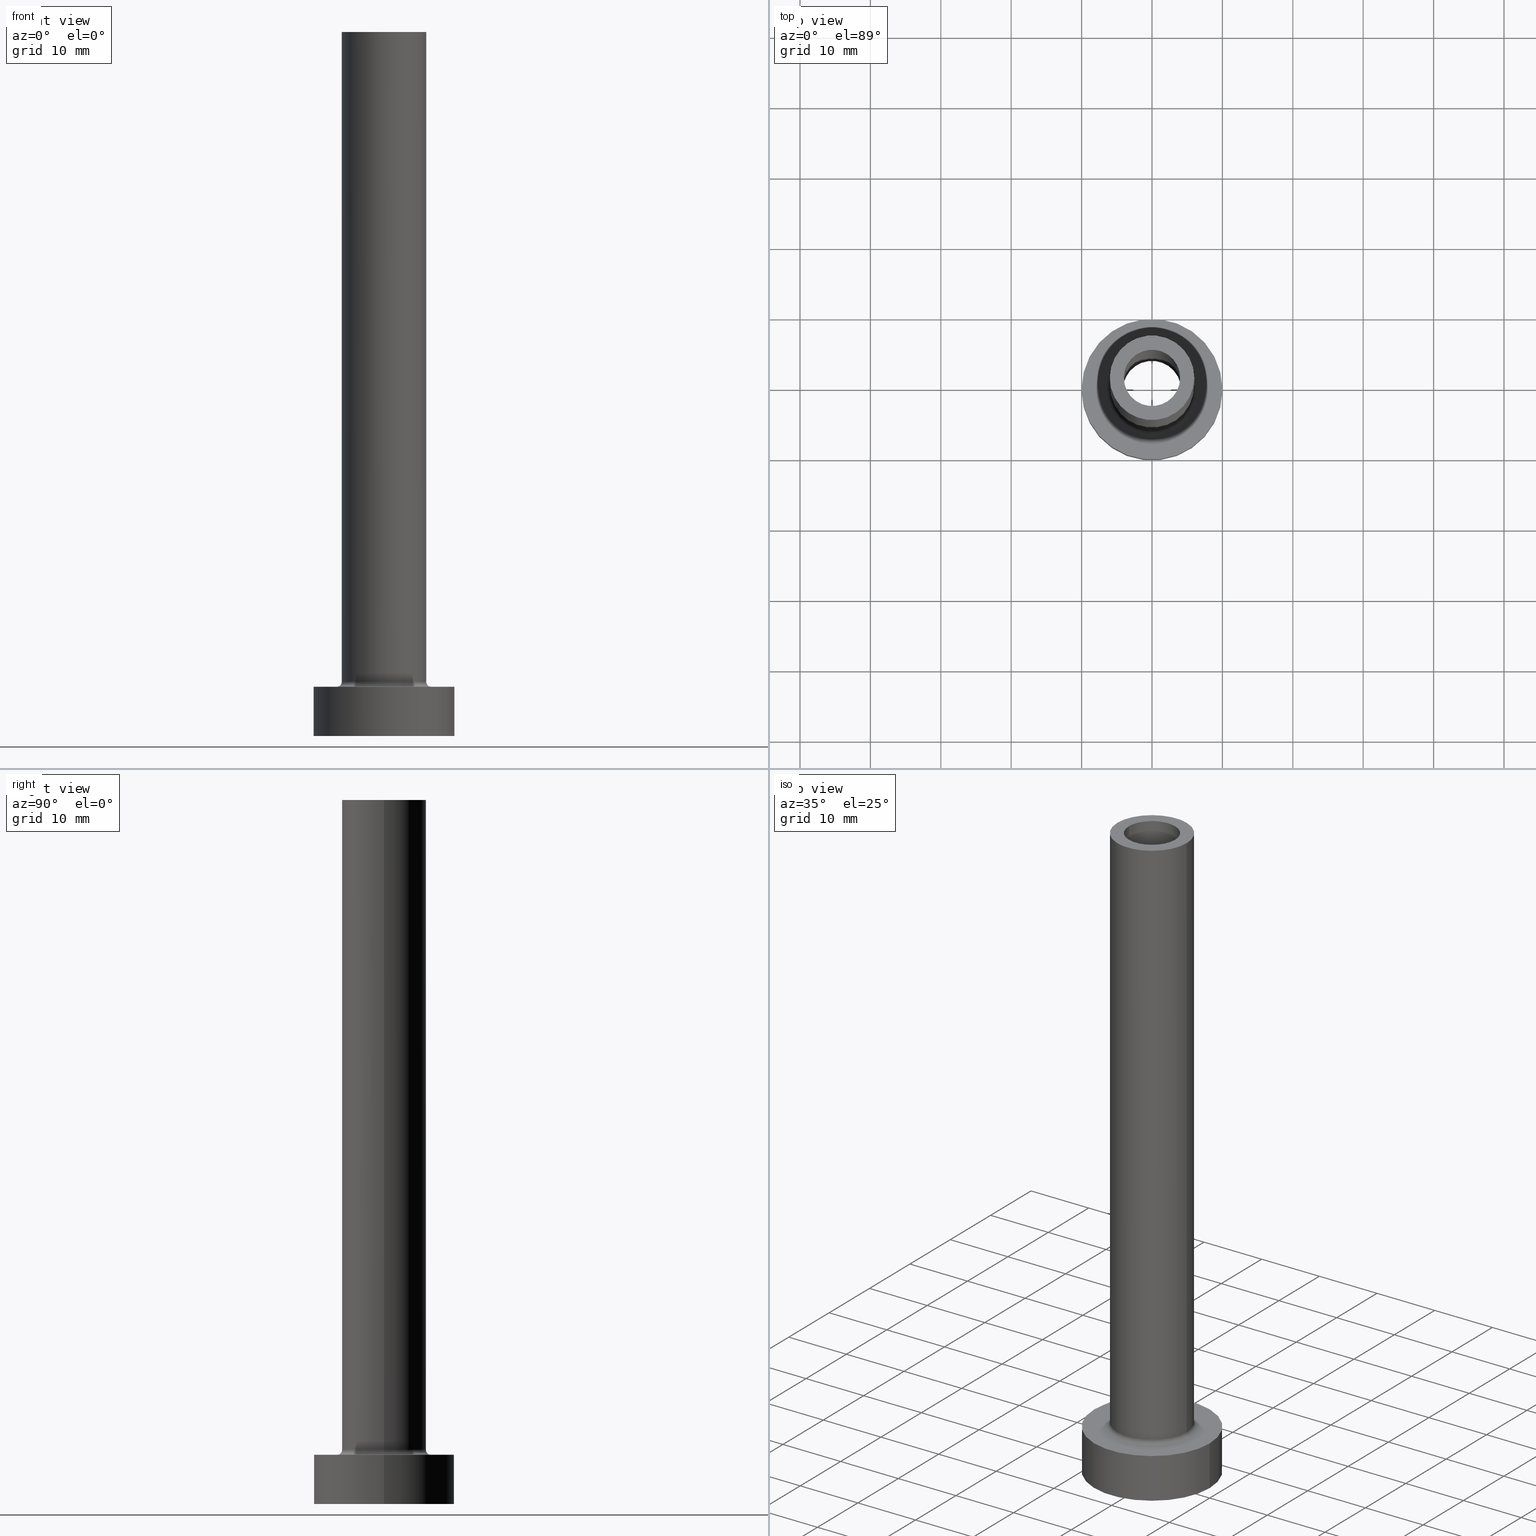
[diagram: canonical four-view strip — front | top / right | iso, engineering-drawing reading convention]
A machine part, canonical four-view strip (front | top / right | iso — engineering-drawing reading convention). The complete STEP part file that produces these views, byte-faithful:
ISO-10303-21;
HEADER;
FILE_DESCRIPTION (( 'STEP AP203' ),
    '1' );
FILE_NAME ('b167.STEP',
    '2023-02-13T12:47:15',
    ( '' ),
    ( '' ),
    'SwSTEP 2.0',
    'SolidWorks 2019',
    '' );
FILE_SCHEMA (( 'CONFIG_CONTROL_DESIGN' ));
ENDSEC;

DATA;
#1 = APPLICATION_PROTOCOL_DEFINITION ( 'international standard', 'config_control_design', 1994, #18 ) ;
#2 = EDGE_LOOP ( 'NONE', ( #177, #180, #408, #334 ) ) ;
#3 = CARTESIAN_POINT ( 'NONE',  ( 0.000000000000000000, 0.000000000000000000, 0.000000000000000000 ) ) ;
#4 = EDGE_CURVE ( 'NONE', #293, #386, #16, .T. ) ;
#5 = DESIGN_CONTEXT ( 'detailed design', #111, 'design' ) ;
#6 = PERSON_AND_ORGANIZATION ( #369, #299 ) ;
#7 = CARTESIAN_POINT ( 'NONE',  ( 4.150000000000000355, 5.082284216461515156E-16, 0.000000000000000000 ) ) ;
#8 = CALENDAR_DATE ( 2023, 13, 2 ) ;
#9 = DIRECTION ( 'NONE',  ( 0.000000000000000000, 0.000000000000000000, 1.000000000000000000 ) ) ;
#10 = EDGE_CURVE ( 'NONE', #386, #161, #127, .T. ) ;
#11 = DIRECTION ( 'NONE',  ( 0.000000000000000000, 0.000000000000000000, -1.000000000000000000 ) ) ;
#12 = ORIENTED_EDGE ( 'NONE', *, *, #92, .T. ) ;
#13 = VERTEX_POINT ( 'NONE', #385 ) ;
#14 = DIRECTION ( 'NONE',  ( 0.000000000000000000, 0.000000000000000000, 1.000000000000000000 ) ) ;
#15 = EDGE_CURVE ( 'NONE', #298, #230, #331, .T. ) ;
#16 = CIRCLE ( 'NONE', #460, 4.150000000000000355 ) ;
#17 = PLANE ( 'NONE',  #358 ) ;
#18 = APPLICATION_CONTEXT ( 'configuration controlled 3d designs of mechanical parts and assemblies' ) ;
#19 = ORIENTED_EDGE ( 'NONE', *, *, #4, .F. ) ;
#20 = EDGE_LOOP ( 'NONE', ( #75, #12, #62, #272 ) ) ;
#21 = VECTOR ( 'NONE', #216, 1000.000000000000000 ) ;
#22 = CARTESIAN_POINT ( 'NONE',  ( 0.000000000000000000, 0.000000000000000000, 100.0000000000000000 ) ) ;
#23 = AXIS2_PLACEMENT_3D ( 'NONE', #442, #122, #377 ) ;
#24 = ADVANCED_FACE ( 'NONE', ( #37 ), #420, .F. ) ;
#25 = DIRECTION ( 'NONE',  ( 0.000000000000000000, 0.000000000000000000, 1.000000000000000000 ) ) ;
#26 = AXIS2_PLACEMENT_3D ( 'NONE', #3, #391, #259 ) ;
#27 = ORIENTED_EDGE ( 'NONE', *, *, #175, .F. ) ;
#28 = DIRECTION ( 'NONE',  ( 1.000000000000000000, 0.000000000000000000, 0.000000000000000000 ) ) ;
#29 = ORIENTED_EDGE ( 'NONE', *, *, #10, .F. ) ;
#30 = CARTESIAN_POINT ( 'NONE',  ( 0.000000000000000000, 0.000000000000000000, 7.000000000000000000 ) ) ;
#31 = CARTESIAN_POINT ( 'NONE',  ( 0.000000000000000000, 0.000000000000000000, 0.000000000000000000 ) ) ;
#32 = DIRECTION ( 'NONE',  ( 1.000000000000000000, 0.000000000000000000, -0.000000000000000000 ) ) ;
#33 = EDGE_LOOP ( 'NONE', ( #29, #86, #211, #397 ) ) ;
#34 = LINE ( 'NONE', #407, #246 ) ;
#35 = AXIS2_PLACEMENT_3D ( 'NONE', #244, #378, #65 ) ;
#36 = AXIS2_PLACEMENT_3D ( 'NONE', #30, #305, #450 ) ;
#37 = FACE_OUTER_BOUND ( 'NONE', #33, .T. ) ;
#38 = DIRECTION ( 'NONE',  ( -1.000000000000000000, 0.000000000000000000, 0.000000000000000000 ) ) ;
#39 = EDGE_LOOP ( 'NONE', ( #329, #120, #206, #417 ) ) ;
#40 = ORIENTED_EDGE ( 'NONE', *, *, #129, .T. ) ;
#41 = ADVANCED_BREP_SHAPE_REPRESENTATION ( 'b167', ( #179, #26 ), #347 ) ;
#42 = EDGE_CURVE ( 'NONE', #311, #298, #171, .T. ) ;
#43 = EDGE_LOOP ( 'NONE', ( #392, #27 ) ) ;
#44 = AXIS2_PLACEMENT_3D ( 'NONE', #101, #107, #38 ) ;
#45 = MECHANICAL_CONTEXT ( 'NONE', #18, 'mechanical' ) ;
#46 = CARTESIAN_POINT ( 'NONE',  ( 4.150000000000000355, 5.082284216461515156E-16, 66.73797256769670128 ) ) ;
#47 = PRODUCT_DEFINITION ( 'NEZN�M�', '', #346, #5 ) ;
#48 = DATE_TIME_ROLE ( 'creation_date' ) ;
#49 = CIRCLE ( 'NONE', #357, 4.150000000000000355 ) ;
#50 = CIRCLE ( 'NONE', #294, 10.00000000000000000 ) ;
#51 = PERSON_AND_ORGANIZATION ( #369, #299 ) ;
#52 = CARTESIAN_POINT ( 'NONE',  ( 0.000000000000000000, 0.000000000000000000, 100.0000000000000000 ) ) ;
#53 = CARTESIAN_POINT ( 'NONE',  ( -4.150000000000000355, 0.000000000000000000, 66.73797256769670128 ) ) ;
#54 = EDGE_CURVE ( 'NONE', #149, #304, #279, .T. ) ;
#55 = ORIENTED_EDGE ( 'NONE', *, *, #278, .T. ) ;
#56 = LOCAL_TIME ( 13, 47, 15.00000000000000000, #147 ) ;
#57 = SHAPE_DEFINITION_REPRESENTATION ( #156, #41 ) ;
#58 = VECTOR ( 'NONE', #371, 1000.000000000000000 ) ;
#59 = PLANE ( 'NONE',  #124 ) ;
#60 = CARTESIAN_POINT ( 'NONE',  ( 0.000000000000000000, 0.000000000000000000, 100.0000000000000000 ) ) ;
#61 = CARTESIAN_POINT ( 'NONE',  ( 0.000000000000000000, 0.000000000000000000, 100.0000000000000000 ) ) ;
#62 = ORIENTED_EDGE ( 'NONE', *, *, #175, .T. ) ;
#63 = APPROVAL_ROLE ( '' ) ;
#64 = DIRECTION ( 'NONE',  ( 1.000000000000000000, 0.000000000000000000, 0.000000000000000000 ) ) ;
#65 = DIRECTION ( 'NONE',  ( 1.000000000000000000, 0.000000000000000000, -0.000000000000000000 ) ) ;
#66 = CARTESIAN_POINT ( 'NONE',  ( 0.000000000000000000, 0.000000000000000000, 0.000000000000000000 ) ) ;
#67 = PERSON_AND_ORGANIZATION ( #369, #299 ) ;
#68 = ORIENTED_EDGE ( 'NONE', *, *, #172, .F. ) ;
#69 = APPROVAL ( #184, 'NEUR�EN�' ) ;
#70 = AXIS2_PLACEMENT_3D ( 'NONE', #106, #143, #387 ) ;
#71 = CC_DESIGN_APPROVAL ( #69, ( #210 ) ) ;
#72 = AXIS2_PLACEMENT_3D ( 'NONE', #77, #141, #432 ) ;
#73 = DIRECTION ( 'NONE',  ( 1.000000000000000000, 0.000000000000000000, 0.000000000000000000 ) ) ;
#74 = LOCAL_TIME ( 13, 47, 15.00000000000000000, #108 ) ;
#75 = ORIENTED_EDGE ( 'NONE', *, *, #384, .F. ) ;
#76 = DIRECTION ( 'NONE',  ( -1.000000000000000000, 0.000000000000000000, 0.000000000000000000 ) ) ;
#77 = CARTESIAN_POINT ( 'NONE',  ( 0.000000000000000000, 0.000000000000000000, 100.0000000000000000 ) ) ;
#78 = EDGE_LOOP ( 'NONE', ( #437, #174, #189, #459 ) ) ;
#79 = AXIS2_PLACEMENT_3D ( 'NONE', #429, #146, #199 ) ;
#80 = DIRECTION ( 'NONE',  ( -0.000000000000000000, -0.000000000000000000, -1.000000000000000000 ) ) ;
#81 = CARTESIAN_POINT ( 'NONE',  ( 0.000000000000000000, 0.000000000000000000, 7.000000000000000000 ) ) ;
#82 = CARTESIAN_POINT ( 'NONE',  ( 0.000000000000000000, 0.000000000000000000, 100.0000000000000000 ) ) ;
#83 = DIRECTION ( 'NONE',  ( 1.000000000000000000, 0.000000000000000000, 0.000000000000000000 ) ) ;
#84 = EDGE_CURVE ( 'NONE', #304, #288, #34, .T. ) ;
#85 = ORIENTED_EDGE ( 'NONE', *, *, #4, .T. ) ;
#86 = ORIENTED_EDGE ( 'NONE', *, *, #444, .T. ) ;
#87 = CALENDAR_DATE ( 2023, 13, 2 ) ;
#88 = VECTOR ( 'NONE', #398, 1000.000000000000000 ) ;
#89 = DIRECTION ( 'NONE',  ( 1.000000000000000000, 0.000000000000000000, 0.000000000000000000 ) ) ;
#90 = AXIS2_PLACEMENT_3D ( 'NONE', #446, #14, #89 ) ;
#91 = CARTESIAN_POINT ( 'NONE',  ( -6.700000000000001066, 8.205133554287267548E-16, 6.999999999999999112 ) ) ;
#92 = EDGE_CURVE ( 'NONE', #309, #160, #238, .T. ) ;
#93 = CARTESIAN_POINT ( 'NONE',  ( 0.000000000000000000, 0.000000000000000000, 100.0000000000000000 ) ) ;
#94 = CIRCLE ( 'NONE', #70, 10.00000000000000000 ) ;
#95 = FACE_OUTER_BOUND ( 'NONE', #292, .T. ) ;
#96 = FACE_OUTER_BOUND ( 'NONE', #243, .T. ) ;
#97 = DIRECTION ( 'NONE',  ( -0.000000000000000000, -0.000000000000000000, -1.000000000000000000 ) ) ;
#98 = EDGE_CURVE ( 'NONE', #191, #160, #50, .T. ) ;
#99 = CARTESIAN_POINT ( 'NONE',  ( -10.00000000000000000, 0.000000000000000000, 7.000000000000000000 ) ) ;
#100 = CARTESIAN_POINT ( 'NONE',  ( 0.000000000000000000, 0.000000000000000000, 66.73797256769670128 ) ) ;
#101 = CARTESIAN_POINT ( 'NONE',  ( 0.000000000000000000, 0.000000000000000000, 66.73797256769670128 ) ) ;
#102 = AXIS2_PLACEMENT_3D ( 'NONE', #197, #303, #64 ) ;
#103 = EDGE_CURVE ( 'NONE', #449, #191, #130, .T. ) ;
#104 = CIRCLE ( 'NONE', #410, 6.000000000000000888 ) ;
#105 = FACE_BOUND ( 'NONE', #265, .T. ) ;
#106 = CARTESIAN_POINT ( 'NONE',  ( 0.000000000000000000, 0.000000000000000000, 0.000000000000000000 ) ) ;
#107 = DIRECTION ( 'NONE',  ( 0.000000000000000000, 0.000000000000000000, -1.000000000000000000 ) ) ;
#108 = COORDINATED_UNIVERSAL_TIME_OFFSET ( 1, 0, .AHEAD. ) ;
#109 =( LENGTH_UNIT ( ) NAMED_UNIT ( * ) SI_UNIT ( .MILLI., .METRE. ) );
#110 = CIRCLE ( 'NONE', #90, 6.000000000000000888 ) ;
#111 = APPLICATION_CONTEXT ( 'configuration controlled 3d designs of mechanical parts and assemblies' ) ;
#112 = PRODUCT_RELATED_PRODUCT_CATEGORY ( 'detail', '', ( #434 ) ) ;
#113 = PERSON_AND_ORGANIZATION ( #369, #299 ) ;
#114 = FACE_OUTER_BOUND ( 'NONE', #39, .T. ) ;
#115 = DIRECTION ( 'NONE',  ( -1.000000000000000000, 0.000000000000000000, 0.000000000000000000 ) ) ;
#116 = EDGE_CURVE ( 'NONE', #262, #311, #240, .T. ) ;
#117 =( NAMED_UNIT ( * ) PLANE_ANGLE_UNIT ( ) SI_UNIT ( $, .RADIAN. ) );
#118 = CARTESIAN_POINT ( 'NONE',  ( 0.000000000000000000, 0.000000000000000000, 7.699999999999998401 ) ) ;
#119 = FACE_OUTER_BOUND ( 'NONE', #2, .T. ) ;
#120 = ORIENTED_EDGE ( 'NONE', *, *, #421, .F. ) ;
#121 = CARTESIAN_POINT ( 'NONE',  ( 0.000000000000000000, 0.000000000000000000, 7.000000000000000000 ) ) ;
#122 = DIRECTION ( 'NONE',  ( 0.000000000000000000, 0.000000000000000000, 1.000000000000000000 ) ) ;
#123 = VERTEX_POINT ( 'NONE', #91 ) ;
#124 = AXIS2_PLACEMENT_3D ( 'NONE', #66, #343, #32 ) ;
#125 = DIRECTION ( 'NONE',  ( 1.000000000000000000, 0.000000000000000000, 0.000000000000000000 ) ) ;
#126 = FACE_OUTER_BOUND ( 'NONE', #261, .T. ) ;
#127 = LINE ( 'NONE', #46, #380 ) ;
#128 = CIRCLE ( 'NONE', #253, 6.700000000000001066 ) ;
#129 = EDGE_CURVE ( 'NONE', #161, #275, #257, .T. ) ;
#130 = LINE ( 'NONE', #99, #133 ) ;
#131 = CC_DESIGN_APPROVAL ( #344, ( #346 ) ) ;
#132 = DIRECTION ( 'NONE',  ( -1.000000000000000000, 0.000000000000000000, 0.000000000000000000 ) ) ;
#133 = VECTOR ( 'NONE', #301, 1000.000000000000000 ) ;
#134 = EDGE_LOOP ( 'NONE', ( #375, #198, #165, #224 ) ) ;
#135 = ORIENTED_EDGE ( 'NONE', *, *, #15, .T. ) ;
#136 = LINE ( 'NONE', #53, #21 ) ;
#137 = ADVANCED_FACE ( 'NONE', ( #95 ), #204, .F. ) ;
#138 = LOCAL_TIME ( 13, 47, 15.00000000000000000, #425 ) ;
#139 = DATE_AND_TIME ( #87, #138 ) ;
#140 = TOROIDAL_SURFACE ( 'NONE', #219, 6.700000000000001066, 0.6999999999999999556 ) ;
#141 = DIRECTION ( 'NONE',  ( 0.000000000000000000, 0.000000000000000000, -1.000000000000000000 ) ) ;
#142 = FACE_OUTER_BOUND ( 'NONE', #78, .T. ) ;
#143 = DIRECTION ( 'NONE',  ( 0.000000000000000000, 0.000000000000000000, 1.000000000000000000 ) ) ;
#144 = ORIENTED_EDGE ( 'NONE', *, *, #384, .T. ) ;
#145 = ADVANCED_FACE ( 'NONE', ( #340, #126 ), #270, .T. ) ;
#146 = DIRECTION ( 'NONE',  ( 0.000000000000000000, 0.000000000000000000, 1.000000000000000000 ) ) ;
#147 = COORDINATED_UNIVERSAL_TIME_OFFSET ( 1, 0, .AHEAD. ) ;
#148 = DIRECTION ( 'NONE',  ( -0.000000000000000000, -0.000000000000000000, -1.000000000000000000 ) ) ;
#149 = VERTEX_POINT ( 'NONE', #207 ) ;
#150 = ORIENTED_EDGE ( 'NONE', *, *, #116, .T. ) ;
#151 = PERSON_AND_ORGANIZATION_ROLE ( 'creator' ) ;
#152 = ORIENTED_EDGE ( 'NONE', *, *, #242, .T. ) ;
#153 = CARTESIAN_POINT ( 'NONE',  ( 0.000000000000000000, 0.000000000000000000, 55.00000000000000711 ) ) ;
#154 = ORIENTED_EDGE ( 'NONE', *, *, #323, .F. ) ;
#155 = APPROVAL_DATE_TIME ( #404, #69 ) ;
#156 = PRODUCT_DEFINITION_SHAPE ( 'NONE', 'NONE',  #47 ) ;
#157 = ADVANCED_FACE ( 'NONE', ( #167 ), #306, .T. ) ;
#158 = CARTESIAN_POINT ( 'NONE',  ( 0.000000000000000000, 0.000000000000000000, 55.00000000000000711 ) ) ;
#159 = CARTESIAN_POINT ( 'NONE',  ( 10.00000000000000000, 1.224646799147353256E-15, 7.000000000000000000 ) ) ;
#160 = VERTEX_POINT ( 'NONE', #280 ) ;
#161 = VERTEX_POINT ( 'NONE', #7 ) ;
#162 = CC_DESIGN_APPROVAL ( #291, ( #47 ) ) ;
#163 = CIRCLE ( 'NONE', #36, 10.00000000000000000 ) ;
#164 = DIRECTION ( 'NONE',  ( 1.000000000000000000, 0.000000000000000000, -0.000000000000000000 ) ) ;
#165 = ORIENTED_EDGE ( 'NONE', *, *, #361, .F. ) ;
#166 = ADVANCED_FACE ( 'NONE', ( #142 ), #390, .T. ) ;
#167 = FACE_OUTER_BOUND ( 'NONE', #20, .T. ) ;
#168 = CARTESIAN_POINT ( 'NONE',  ( 0.000000000000000000, 0.000000000000000000, 55.00000000000000711 ) ) ;
#169 = AXIS2_PLACEMENT_3D ( 'NONE', #319, #393, #76 ) ;
#170 = VECTOR ( 'NONE', #201, 1000.000000000000000 ) ;
#171 = LINE ( 'NONE', #333, #58 ) ;
#172 = EDGE_CURVE ( 'NONE', #293, #275, #136, .T. ) ;
#173 = DIRECTION ( 'NONE',  ( 0.000000000000000000, 0.000000000000000000, 1.000000000000000000 ) ) ;
#174 = ORIENTED_EDGE ( 'NONE', *, *, #213, .T. ) ;
#175 = EDGE_CURVE ( 'NONE', #160, #191, #94, .T. ) ;
#176 = CYLINDRICAL_SURFACE ( 'NONE', #169, 10.00000000000000000 ) ;
#177 = ORIENTED_EDGE ( 'NONE', *, *, #92, .F. ) ;
#178 = EDGE_LOOP ( 'NONE', ( #325, #290, #430, #135 ) ) ;
#179 = MANIFOLD_SOLID_BREP ( 'Odebrat vysunut�m4', #268 ) ;
#180 = ORIENTED_EDGE ( 'NONE', *, *, #427, .F. ) ;
#181 = CIRCLE ( 'NONE', #102, 4.000000000000000000 ) ;
#182 = CARTESIAN_POINT ( 'NONE',  ( -6.700000000000001066, 8.205133554287267548E-16, 7.699999999999998401 ) ) ;
#183 = ORIENTED_EDGE ( 'NONE', *, *, #444, .F. ) ;
#184 = APPROVAL_STATUS ( 'not_yet_approved' ) ;
#185 = CYLINDRICAL_SURFACE ( 'NONE', #282, 4.000000000000000000 ) ;
#186 = CARTESIAN_POINT ( 'NONE',  ( -4.150000000000000355, 0.000000000000000000, 0.000000000000000000 ) ) ;
#187 = CALENDAR_DATE ( 2023, 13, 2 ) ;
#188 =( NAMED_UNIT ( * ) SI_UNIT ( $, .STERADIAN. ) SOLID_ANGLE_UNIT ( ) );
#189 = ORIENTED_EDGE ( 'NONE', *, *, #421, .T. ) ;
#190 = DIRECTION ( 'NONE',  ( 0.000000000000000000, 0.000000000000000000, 1.000000000000000000 ) ) ;
#191 = VERTEX_POINT ( 'NONE', #354 ) ;
#192 = DIRECTION ( 'NONE',  ( -0.000000000000000000, -0.000000000000000000, -1.000000000000000000 ) ) ;
#193 = EDGE_LOOP ( 'NONE', ( #152, #455 ) ) ;
#194 = CARTESIAN_POINT ( 'NONE',  ( 6.000000000000000888, 7.347880794884119736E-16, 100.0000000000000000 ) ) ;
#195 = APPROVAL_ROLE ( '' ) ;
#196 = ADVANCED_FACE ( 'NONE', ( #320 ), #185, .F. ) ;
#197 = CARTESIAN_POINT ( 'NONE',  ( 0.000000000000000000, 0.000000000000000000, 100.0000000000000000 ) ) ;
#198 = ORIENTED_EDGE ( 'NONE', *, *, #416, .T. ) ;
#199 = DIRECTION ( 'NONE',  ( 1.000000000000000000, 0.000000000000000000, -0.000000000000000000 ) ) ;
#200 = DIRECTION ( 'NONE',  ( 0.000000000000000000, 0.000000000000000000, 1.000000000000000000 ) ) ;
#201 = DIRECTION ( 'NONE',  ( -0.000000000000000000, -0.000000000000000000, -1.000000000000000000 ) ) ;
#202 = ORIENTED_EDGE ( 'NONE', *, *, #84, .T. ) ;
#203 = CARTESIAN_POINT ( 'NONE',  ( 4.150000000000000355, 5.082284216461515156E-16, 55.00000000000000711 ) ) ;
#204 = CYLINDRICAL_SURFACE ( 'NONE', #324, 4.150000000000000355 ) ;
#205 = CC_DESIGN_PERSON_AND_ORGANIZATION_ASSIGNMENT ( #350, #151, ( #346 ) ) ;
#206 = ORIENTED_EDGE ( 'NONE', *, *, #248, .T. ) ;
#207 = CARTESIAN_POINT ( 'NONE',  ( 4.000000000000000000, 4.898587196589411843E-16, 100.0000000000000000 ) ) ;
#208 = DIRECTION ( 'NONE',  ( 0.000000000000000000, 0.000000000000000000, -1.000000000000000000 ) ) ;
#209 = PERSON_AND_ORGANIZATION ( #369, #299 ) ;
#210 = SECURITY_CLASSIFICATION ( '', '', #428 ) ;
#211 = ORIENTED_EDGE ( 'NONE', *, *, #172, .T. ) ;
#212 = PERSON_AND_ORGANIZATION ( #369, #299 ) ;
#213 = EDGE_CURVE ( 'NONE', #262, #230, #222, .T. ) ;
#214 = PLANE ( 'NONE',  #79 ) ;
#215 = COORDINATED_UNIVERSAL_TIME_OFFSET ( 1, 0, .AHEAD. ) ;
#216 = DIRECTION ( 'NONE',  ( 0.000000000000000000, 0.000000000000000000, -1.000000000000000000 ) ) ;
#217 = AXIS2_PLACEMENT_3D ( 'NONE', #454, #97, #132 ) ;
#218 = EDGE_LOOP ( 'NONE', ( #372, #231, #202, #264 ) ) ;
#219 = AXIS2_PLACEMENT_3D ( 'NONE', #118, #9, #330 ) ;
#220 = CIRCLE ( 'NONE', #457, 10.00000000000000000 ) ;
#221 = DATE_AND_TIME ( #187, #56 ) ;
#222 = LINE ( 'NONE', #426, #335 ) ;
#223 = ADVANCED_FACE ( 'NONE', ( #287 ), #356, .F. ) ;
#224 = ORIENTED_EDGE ( 'NONE', *, *, #84, .F. ) ;
#225 = ORIENTED_EDGE ( 'NONE', *, *, #54, .F. ) ;
#226 = DIRECTION ( 'NONE',  ( -1.000000000000000000, 0.000000000000000000, 0.000000000000000000 ) ) ;
#227 = EDGE_LOOP ( 'NONE', ( #250, #338, #402, #396 ) ) ;
#228 = CARTESIAN_POINT ( 'NONE',  ( -4.000000000000000000, 0.000000000000000000, 55.00000000000000711 ) ) ;
#229 = CARTESIAN_POINT ( 'NONE',  ( 0.000000000000000000, 0.000000000000000000, 7.699999999999998401 ) ) ;
#230 = VERTEX_POINT ( 'NONE', #258 ) ;
#231 = ORIENTED_EDGE ( 'NONE', *, *, #54, .T. ) ;
#232 = DIRECTION ( 'NONE',  ( 0.000000000000000000, 0.000000000000000000, 1.000000000000000000 ) ) ;
#233 = CC_DESIGN_DATE_AND_TIME_ASSIGNMENT ( #283, #285, ( #210 ) ) ;
#234 = CARTESIAN_POINT ( 'NONE',  ( 4.000000000000000000, 4.898587196589411843E-16, 100.0000000000000000 ) ) ;
#235 = APPROVAL_STATUS ( 'not_yet_approved' ) ;
#236 = AXIS2_PLACEMENT_3D ( 'NONE', #153, #190, #286 ) ;
#237 = DIRECTION ( 'NONE',  ( 1.000000000000000000, 0.000000000000000000, 0.000000000000000000 ) ) ;
#238 = LINE ( 'NONE', #159, #170 ) ;
#239 = ORIENTED_EDGE ( 'NONE', *, *, #427, .T. ) ;
#240 = CIRCLE ( 'NONE', #412, 6.000000000000000888 ) ;
#241 = CIRCLE ( 'NONE', #447, 6.700000000000001066 ) ;
#242 = EDGE_CURVE ( 'NONE', #13, #123, #128, .T. ) ;
#243 = EDGE_LOOP ( 'NONE', ( #239, #144 ) ) ;
#244 = CARTESIAN_POINT ( 'NONE',  ( 0.000000000000000000, 0.000000000000000000, 100.0000000000000000 ) ) ;
#245 = APPLICATION_PROTOCOL_DEFINITION ( 'international standard', 'config_control_design', 1994, #111 ) ;
#246 = VECTOR ( 'NONE', #308, 1000.000000000000000 ) ;
#247 = ORIENTED_EDGE ( 'NONE', *, *, #10, .T. ) ;
#248 = EDGE_CURVE ( 'NONE', #230, #13, #436, .T. ) ;
#249 = AXIS2_PLACEMENT_3D ( 'NONE', #182, #315, #355 ) ;
#250 = ORIENTED_EDGE ( 'NONE', *, *, #15, .F. ) ;
#251 = FACE_OUTER_BOUND ( 'NONE', #345, .T. ) ;
#252 = CC_DESIGN_PERSON_AND_ORGANIZATION_ASSIGNMENT ( #255, #295, ( #210 ) ) ;
#253 = AXIS2_PLACEMENT_3D ( 'NONE', #395, #80, #367 ) ;
#254 = TOROIDAL_SURFACE ( 'NONE', #423, 6.700000000000001066, 0.6999999999999999556 ) ;
#255 = PERSON_AND_ORGANIZATION ( #369, #299 ) ;
#256 = EDGE_CURVE ( 'NONE', #123, #13, #241, .T. ) ;
#257 = CIRCLE ( 'NONE', #273, 4.150000000000000355 ) ;
#258 = CARTESIAN_POINT ( 'NONE',  ( 6.000000000000000888, 7.347880794884119736E-16, 7.699999999999998401 ) ) ;
#259 = DIRECTION ( 'NONE',  ( 1.000000000000000000, 0.000000000000000000, 0.000000000000000000 ) ) ;
#260 = DIRECTION ( 'NONE',  ( 0.000000000000000000, 0.000000000000000000, -1.000000000000000000 ) ) ;
#261 = EDGE_LOOP ( 'NONE', ( #441, #150 ) ) ;
#262 = VERTEX_POINT ( 'NONE', #194 ) ;
#263 = EDGE_CURVE ( 'NONE', #311, #262, #104, .T. ) ;
#264 = ORIENTED_EDGE ( 'NONE', *, *, #278, .F. ) ;
#265 = EDGE_LOOP ( 'NONE', ( #368, #55 ) ) ;
#266 = APPROVAL_PERSON_ORGANIZATION ( #212, #69, #195 ) ;
#267 = DIRECTION ( 'NONE',  ( 0.000000000000000000, 0.000000000000000000, 1.000000000000000000 ) ) ;
#268 = CLOSED_SHELL ( 'NONE', ( #196, #137, #276, #166, #157, #452, #336, #352, #314, #145, #409, #24, #394, #223 ) ) ;
#269 = DIRECTION ( 'NONE',  ( 0.000000000000000000, 0.000000000000000000, 1.000000000000000000 ) ) ;
#270 = PLANE ( 'NONE',  #35 ) ;
#271 = FACE_OUTER_BOUND ( 'NONE', #178, .T. ) ;
#272 = ORIENTED_EDGE ( 'NONE', *, *, #103, .F. ) ;
#273 = AXIS2_PLACEMENT_3D ( 'NONE', #31, #381, #418 ) ;
#274 = APPROVAL_PERSON_ORGANIZATION ( #209, #291, #63 ) ;
#275 = VERTEX_POINT ( 'NONE', #186 ) ;
#276 = ADVANCED_FACE ( 'NONE', ( #438 ), #140, .F. ) ;
#277 = DATE_AND_TIME ( #445, #74 ) ;
#278 = EDGE_CURVE ( 'NONE', #363, #288, #284, .T. ) ;
#279 = CIRCLE ( 'NONE', #440, 4.000000000000000000 ) ;
#280 = CARTESIAN_POINT ( 'NONE',  ( 10.00000000000000000, 1.224646799147353256E-15, 0.000000000000000000 ) ) ;
#281 = PERSON_AND_ORGANIZATION_ROLE ( 'design_supplier' ) ;
#282 = AXIS2_PLACEMENT_3D ( 'NONE', #52, #11, #226 ) ;
#283 = DATE_AND_TIME ( #8, #388 ) ;
#284 = CIRCLE ( 'NONE', #236, 4.000000000000000000 ) ;
#285 = DATE_TIME_ROLE ( 'classification_date' ) ;
#286 = DIRECTION ( 'NONE',  ( 1.000000000000000000, 0.000000000000000000, 0.000000000000000000 ) ) ;
#287 = FACE_OUTER_BOUND ( 'NONE', #218, .T. ) ;
#288 = VERTEX_POINT ( 'NONE', #228 ) ;
#289 = DIRECTION ( 'NONE',  ( 1.000000000000000000, 0.000000000000000000, 0.000000000000000000 ) ) ;
#290 = ORIENTED_EDGE ( 'NONE', *, *, #263, .F. ) ;
#291 = APPROVAL ( #405, 'NEUR�EN�' ) ;
#292 = EDGE_LOOP ( 'NONE', ( #85, #247, #40, #68 ) ) ;
#293 = VERTEX_POINT ( 'NONE', #360 ) ;
#294 = AXIS2_PLACEMENT_3D ( 'NONE', #337, #25, #419 ) ;
#295 = PERSON_AND_ORGANIZATION_ROLE ( 'classification_officer' ) ;
#296 = CARTESIAN_POINT ( 'NONE',  ( 0.000000000000000000, 0.000000000000000000, 0.000000000000000000 ) ) ;
#297 = CARTESIAN_POINT ( 'NONE',  ( 10.00000000000000000, 1.224646799147353256E-15, 7.000000000000000000 ) ) ;
#298 = VERTEX_POINT ( 'NONE', #362 ) ;
#299 = ORGANIZATION ( 'NEUR�EN�', 'NEUR�EN�', '' ) ;
#300 = LOCAL_TIME ( 13, 47, 15.00000000000000000, #365 ) ;
#301 = DIRECTION ( 'NONE',  ( -0.000000000000000000, -0.000000000000000000, -1.000000000000000000 ) ) ;
#302 = CC_DESIGN_PERSON_AND_ORGANIZATION_ASSIGNMENT ( #67, #341, ( #434 ) ) ;
#303 = DIRECTION ( 'NONE',  ( 0.000000000000000000, 0.000000000000000000, 1.000000000000000000 ) ) ;
#304 = VERTEX_POINT ( 'NONE', #326 ) ;
#305 = DIRECTION ( 'NONE',  ( 0.000000000000000000, 0.000000000000000000, 1.000000000000000000 ) ) ;
#306 = CYLINDRICAL_SURFACE ( 'NONE', #217, 10.00000000000000000 ) ;
#307 = DIRECTION ( 'NONE',  ( 0.000000000000000000, 0.000000000000000000, 1.000000000000000000 ) ) ;
#308 = DIRECTION ( 'NONE',  ( 0.000000000000000000, 0.000000000000000000, -1.000000000000000000 ) ) ;
#309 = VERTEX_POINT ( 'NONE', #297 ) ;
#310 = CC_DESIGN_PERSON_AND_ORGANIZATION_ASSIGNMENT ( #113, #281, ( #346 ) ) ;
#311 = VERTEX_POINT ( 'NONE', #443 ) ;
#312 = AXIS2_PLACEMENT_3D ( 'NONE', #93, #451, #415 ) ;
#313 = PERSON_AND_ORGANIZATION_ROLE ( 'creator' ) ;
#314 = ADVANCED_FACE ( 'NONE', ( #271 ), #414, .T. ) ;
#315 = DIRECTION ( 'NONE',  ( 1.224646799147353207E-16, 1.000000000000000000, -0.000000000000000000 ) ) ;
#316 = DIRECTION ( 'NONE',  ( -0.000000000000000000, -0.000000000000000000, -1.000000000000000000 ) ) ;
#317 = ORIENTED_EDGE ( 'NONE', *, *, #349, .F. ) ;
#318 = AXIS2_PLACEMENT_3D ( 'NONE', #322, #400, #260 ) ;
#319 = CARTESIAN_POINT ( 'NONE',  ( 0.000000000000000000, 0.000000000000000000, 7.000000000000000000 ) ) ;
#320 = FACE_OUTER_BOUND ( 'NONE', #134, .T. ) ;
#321 = CC_DESIGN_SECURITY_CLASSIFICATION ( #210, ( #346 ) ) ;
#322 = CARTESIAN_POINT ( 'NONE',  ( 6.700000000000001066, 0.000000000000000000, 7.699999999999998401 ) ) ;
#323 = EDGE_CURVE ( 'NONE', #275, #161, #448, .T. ) ;
#324 = AXIS2_PLACEMENT_3D ( 'NONE', #100, #208, #413 ) ;
#325 = ORIENTED_EDGE ( 'NONE', *, *, #213, .F. ) ;
#326 = CARTESIAN_POINT ( 'NONE',  ( -4.000000000000000000, 0.000000000000000000, 100.0000000000000000 ) ) ;
#327 = DIRECTION ( 'NONE',  ( 1.000000000000000000, 0.000000000000000000, 0.000000000000000000 ) ) ;
#328 = CIRCLE ( 'NONE', #23, 4.000000000000000000 ) ;
#329 = ORIENTED_EDGE ( 'NONE', *, *, #389, .F. ) ;
#330 = DIRECTION ( 'NONE',  ( 1.000000000000000000, 0.000000000000000000, 0.000000000000000000 ) ) ;
#331 = CIRCLE ( 'NONE', #383, 6.000000000000000888 ) ;
#332 = EDGE_LOOP ( 'NONE', ( #317, #225 ) ) ;
#333 = CARTESIAN_POINT ( 'NONE',  ( -6.000000000000000888, 0.000000000000000000, 100.0000000000000000 ) ) ;
#334 = ORIENTED_EDGE ( 'NONE', *, *, #98, .T. ) ;
#335 = VECTOR ( 'NONE', #435, 1000.000000000000000 ) ;
#336 = ADVANCED_FACE ( 'NONE', ( #373, #96 ), #17, .T. ) ;
#337 = CARTESIAN_POINT ( 'NONE',  ( 0.000000000000000000, 0.000000000000000000, 0.000000000000000000 ) ) ;
#338 = ORIENTED_EDGE ( 'NONE', *, *, #389, .T. ) ;
#339 = CARTESIAN_POINT ( 'NONE',  ( 4.000000000000000000, 4.898587196589411843E-16, 55.00000000000000711 ) ) ;
#340 = FACE_BOUND ( 'NONE', #332, .T. ) ;
#341 = PERSON_AND_ORGANIZATION_ROLE ( 'design_owner' ) ;
#342 = DIRECTION ( 'NONE',  ( 0.000000000000000000, 0.000000000000000000, 1.000000000000000000 ) ) ;
#343 = DIRECTION ( 'NONE',  ( 0.000000000000000000, 0.000000000000000000, 1.000000000000000000 ) ) ;
#344 = APPROVAL ( #235, 'NEUR�EN�' ) ;
#345 = EDGE_LOOP ( 'NONE', ( #19, #183 ) ) ;
#346 = PRODUCT_DEFINITION_FORMATION_WITH_SPECIFIED_SOURCE ( 'LIBOVOLN�', '', #434, .NOT_KNOWN. ) ;
#347 =( GEOMETRIC_REPRESENTATION_CONTEXT ( 3 ) GLOBAL_UNCERTAINTY_ASSIGNED_CONTEXT ( ( #348 ) ) GLOBAL_UNIT_ASSIGNED_CONTEXT ( ( #109, #117, #188 ) ) REPRESENTATION_CONTEXT ( 'NONE', 'WORKASPACE' ) );
#348 = UNCERTAINTY_MEASURE_WITH_UNIT (LENGTH_MEASURE( 1.000000000000000082E-05 ), #109, 'distance_accuracy_value', 'NONE');
#349 = EDGE_CURVE ( 'NONE', #304, #149, #181, .T. ) ;
#350 = PERSON_AND_ORGANIZATION ( #369, #299 ) ;
#351 = APPROVAL_ROLE ( '' ) ;
#352 = ADVANCED_FACE ( 'NONE', ( #370, #366 ), #59, .F. ) ;
#353 = CALENDAR_DATE ( 2023, 13, 2 ) ;
#354 = CARTESIAN_POINT ( 'NONE',  ( -10.00000000000000000, 0.000000000000000000, 0.000000000000000000 ) ) ;
#355 = DIRECTION ( 'NONE',  ( -1.000000000000000000, 1.224646799147353454E-16, 0.000000000000000000 ) ) ;
#356 = CYLINDRICAL_SURFACE ( 'NONE', #72, 4.000000000000000000 ) ;
#357 = AXIS2_PLACEMENT_3D ( 'NONE', #158, #267, #289 ) ;
#358 = AXIS2_PLACEMENT_3D ( 'NONE', #411, #200, #164 ) ;
#359 = APPROVAL_DATE_TIME ( #221, #291 ) ;
#360 = CARTESIAN_POINT ( 'NONE',  ( -4.150000000000000355, 0.000000000000000000, 55.00000000000000711 ) ) ;
#361 = EDGE_CURVE ( 'NONE', #288, #363, #328, .T. ) ;
#362 = CARTESIAN_POINT ( 'NONE',  ( -6.000000000000000888, 0.000000000000000000, 7.699999999999998401 ) ) ;
#363 = VERTEX_POINT ( 'NONE', #339 ) ;
#364 = DIRECTION ( 'NONE',  ( 1.000000000000000000, 0.000000000000000000, 0.000000000000000000 ) ) ;
#365 = COORDINATED_UNIVERSAL_TIME_OFFSET ( 1, 0, .AHEAD. ) ;
#366 = FACE_OUTER_BOUND ( 'NONE', #43, .T. ) ;
#367 = DIRECTION ( 'NONE',  ( 1.000000000000000000, 0.000000000000000000, 0.000000000000000000 ) ) ;
#368 = ORIENTED_EDGE ( 'NONE', *, *, #361, .T. ) ;
#369 = PERSON ( 'NEUR�EN�', 'NEUR�EN�', 'NEUR�EN�', ('NEUR�EN�'), ('NEUR�EN�'), ('NEUR�EN�') ) ;
#370 = FACE_BOUND ( 'NONE', #376, .T. ) ;
#371 = DIRECTION ( 'NONE',  ( -0.000000000000000000, -0.000000000000000000, -1.000000000000000000 ) ) ;
#372 = ORIENTED_EDGE ( 'NONE', *, *, #416, .F. ) ;
#373 = FACE_BOUND ( 'NONE', #193, .T. ) ;
#374 = AXIS2_PLACEMENT_3D ( 'NONE', #82, #316, #115 ) ;
#375 = ORIENTED_EDGE ( 'NONE', *, *, #349, .T. ) ;
#376 = EDGE_LOOP ( 'NONE', ( #154, #399 ) ) ;
#377 = DIRECTION ( 'NONE',  ( 1.000000000000000000, 0.000000000000000000, 0.000000000000000000 ) ) ;
#378 = DIRECTION ( 'NONE',  ( 0.000000000000000000, 0.000000000000000000, 1.000000000000000000 ) ) ;
#379 = CC_DESIGN_DATE_AND_TIME_ASSIGNMENT ( #277, #48, ( #47 ) ) ;
#380 = VECTOR ( 'NONE', #458, 1000.000000000000000 ) ;
#381 = DIRECTION ( 'NONE',  ( -0.000000000000000000, -0.000000000000000000, -1.000000000000000000 ) ) ;
#382 = CIRCLE ( 'NONE', #249, 0.7000000000000000666 ) ;
#383 = AXIS2_PLACEMENT_3D ( 'NONE', #424, #173, #73 ) ;
#384 = EDGE_CURVE ( 'NONE', #309, #449, #163, .T. ) ;
#385 = CARTESIAN_POINT ( 'NONE',  ( 6.700000000000001066, 0.000000000000000000, 6.999999999999999112 ) ) ;
#386 = VERTEX_POINT ( 'NONE', #203 ) ;
#387 = DIRECTION ( 'NONE',  ( 1.000000000000000000, 0.000000000000000000, 0.000000000000000000 ) ) ;
#388 = LOCAL_TIME ( 13, 47, 15.00000000000000000, #215 ) ;
#389 = EDGE_CURVE ( 'NONE', #298, #123, #382, .T. ) ;
#390 = CYLINDRICAL_SURFACE ( 'NONE', #374, 6.000000000000000888 ) ;
#391 = DIRECTION ( 'NONE',  ( 0.000000000000000000, 0.000000000000000000, 1.000000000000000000 ) ) ;
#392 = ORIENTED_EDGE ( 'NONE', *, *, #98, .F. ) ;
#393 = DIRECTION ( 'NONE',  ( -0.000000000000000000, -0.000000000000000000, -1.000000000000000000 ) ) ;
#394 = ADVANCED_FACE ( 'NONE', ( #105, #251 ), #214, .F. ) ;
#395 = CARTESIAN_POINT ( 'NONE',  ( 0.000000000000000000, 0.000000000000000000, 7.000000000000000000 ) ) ;
#396 = ORIENTED_EDGE ( 'NONE', *, *, #248, .F. ) ;
#397 = ORIENTED_EDGE ( 'NONE', *, *, #323, .T. ) ;
#398 = DIRECTION ( 'NONE',  ( 0.000000000000000000, 0.000000000000000000, -1.000000000000000000 ) ) ;
#399 = ORIENTED_EDGE ( 'NONE', *, *, #129, .F. ) ;
#400 = DIRECTION ( 'NONE',  ( 0.000000000000000000, -1.000000000000000000, 0.000000000000000000 ) ) ;
#401 = DIRECTION ( 'NONE',  ( 0.000000000000000000, 0.000000000000000000, 1.000000000000000000 ) ) ;
#402 = ORIENTED_EDGE ( 'NONE', *, *, #242, .F. ) ;
#403 = DIRECTION ( 'NONE',  ( 0.000000000000000000, 0.000000000000000000, 1.000000000000000000 ) ) ;
#404 = DATE_AND_TIME ( #353, #300 ) ;
#405 = APPROVAL_STATUS ( 'not_yet_approved' ) ;
#406 = AXIS2_PLACEMENT_3D ( 'NONE', #296, #192, #125 ) ;
#407 = CARTESIAN_POINT ( 'NONE',  ( -4.000000000000000000, 0.000000000000000000, 100.0000000000000000 ) ) ;
#408 = ORIENTED_EDGE ( 'NONE', *, *, #103, .T. ) ;
#409 = ADVANCED_FACE ( 'NONE', ( #114 ), #254, .F. ) ;
#410 = AXIS2_PLACEMENT_3D ( 'NONE', #60, #232, #364 ) ;
#411 = CARTESIAN_POINT ( 'NONE',  ( 0.000000000000000000, 0.000000000000000000, 7.000000000000000000 ) ) ;
#412 = AXIS2_PLACEMENT_3D ( 'NONE', #22, #269, #456 ) ;
#413 = DIRECTION ( 'NONE',  ( -1.000000000000000000, 0.000000000000000000, 0.000000000000000000 ) ) ;
#414 = CYLINDRICAL_SURFACE ( 'NONE', #312, 6.000000000000000888 ) ;
#415 = DIRECTION ( 'NONE',  ( -1.000000000000000000, 0.000000000000000000, 0.000000000000000000 ) ) ;
#416 = EDGE_CURVE ( 'NONE', #149, #363, #433, .T. ) ;
#417 = ORIENTED_EDGE ( 'NONE', *, *, #256, .F. ) ;
#418 = DIRECTION ( 'NONE',  ( 1.000000000000000000, 0.000000000000000000, 0.000000000000000000 ) ) ;
#419 = DIRECTION ( 'NONE',  ( 1.000000000000000000, 0.000000000000000000, 0.000000000000000000 ) ) ;
#420 = CYLINDRICAL_SURFACE ( 'NONE', #44, 4.150000000000000355 ) ;
#421 = EDGE_CURVE ( 'NONE', #230, #298, #110, .T. ) ;
#422 = APPROVAL_PERSON_ORGANIZATION ( #6, #344, #351 ) ;
#423 = AXIS2_PLACEMENT_3D ( 'NONE', #229, #403, #327 ) ;
#424 = CARTESIAN_POINT ( 'NONE',  ( 0.000000000000000000, 0.000000000000000000, 7.699999999999998401 ) ) ;
#425 = COORDINATED_UNIVERSAL_TIME_OFFSET ( 1, 0, .AHEAD. ) ;
#426 = CARTESIAN_POINT ( 'NONE',  ( 6.000000000000000888, 7.347880794884119736E-16, 100.0000000000000000 ) ) ;
#427 = EDGE_CURVE ( 'NONE', #449, #309, #220, .T. ) ;
#428 = SECURITY_CLASSIFICATION_LEVEL ( 'unclassified' ) ;
#429 = CARTESIAN_POINT ( 'NONE',  ( 0.000000000000000000, 0.000000000000000000, 55.00000000000000711 ) ) ;
#430 = ORIENTED_EDGE ( 'NONE', *, *, #42, .T. ) ;
#431 = APPROVAL_DATE_TIME ( #139, #344 ) ;
#432 = DIRECTION ( 'NONE',  ( -1.000000000000000000, 0.000000000000000000, 0.000000000000000000 ) ) ;
#433 = LINE ( 'NONE', #234, #88 ) ;
#434 = PRODUCT ( 'b167', 'b167', '', ( #45 ) ) ;
#435 = DIRECTION ( 'NONE',  ( -0.000000000000000000, -0.000000000000000000, -1.000000000000000000 ) ) ;
#436 = CIRCLE ( 'NONE', #318, 0.7000000000000000666 ) ;
#437 = ORIENTED_EDGE ( 'NONE', *, *, #116, .F. ) ;
#438 = FACE_OUTER_BOUND ( 'NONE', #227, .T. ) ;
#439 = CARTESIAN_POINT ( 'NONE',  ( -10.00000000000000000, 0.000000000000000000, 7.000000000000000000 ) ) ;
#440 = AXIS2_PLACEMENT_3D ( 'NONE', #61, #342, #28 ) ;
#441 = ORIENTED_EDGE ( 'NONE', *, *, #263, .T. ) ;
#442 = CARTESIAN_POINT ( 'NONE',  ( 0.000000000000000000, 0.000000000000000000, 55.00000000000000711 ) ) ;
#443 = CARTESIAN_POINT ( 'NONE',  ( -6.000000000000000888, 0.000000000000000000, 100.0000000000000000 ) ) ;
#444 = EDGE_CURVE ( 'NONE', #386, #293, #49, .T. ) ;
#445 = CALENDAR_DATE ( 2023, 13, 2 ) ;
#446 = CARTESIAN_POINT ( 'NONE',  ( 0.000000000000000000, 0.000000000000000000, 7.699999999999998401 ) ) ;
#447 = AXIS2_PLACEMENT_3D ( 'NONE', #81, #148, #83 ) ;
#448 = CIRCLE ( 'NONE', #406, 4.150000000000000355 ) ;
#449 = VERTEX_POINT ( 'NONE', #439 ) ;
#450 = DIRECTION ( 'NONE',  ( 1.000000000000000000, 0.000000000000000000, 0.000000000000000000 ) ) ;
#451 = DIRECTION ( 'NONE',  ( -0.000000000000000000, -0.000000000000000000, -1.000000000000000000 ) ) ;
#452 = ADVANCED_FACE ( 'NONE', ( #119 ), #176, .T. ) ;
#453 = DIRECTION ( 'NONE',  ( 1.000000000000000000, 0.000000000000000000, 0.000000000000000000 ) ) ;
#454 = CARTESIAN_POINT ( 'NONE',  ( 0.000000000000000000, 0.000000000000000000, 7.000000000000000000 ) ) ;
#455 = ORIENTED_EDGE ( 'NONE', *, *, #256, .T. ) ;
#456 = DIRECTION ( 'NONE',  ( 1.000000000000000000, 0.000000000000000000, 0.000000000000000000 ) ) ;
#457 = AXIS2_PLACEMENT_3D ( 'NONE', #121, #401, #237 ) ;
#458 = DIRECTION ( 'NONE',  ( 0.000000000000000000, 0.000000000000000000, -1.000000000000000000 ) ) ;
#459 = ORIENTED_EDGE ( 'NONE', *, *, #42, .F. ) ;
#460 = AXIS2_PLACEMENT_3D ( 'NONE', #168, #307, #453 ) ;
#461 = CC_DESIGN_PERSON_AND_ORGANIZATION_ASSIGNMENT ( #51, #313, ( #47 ) ) ;
ENDSEC;
END-ISO-10303-21;
